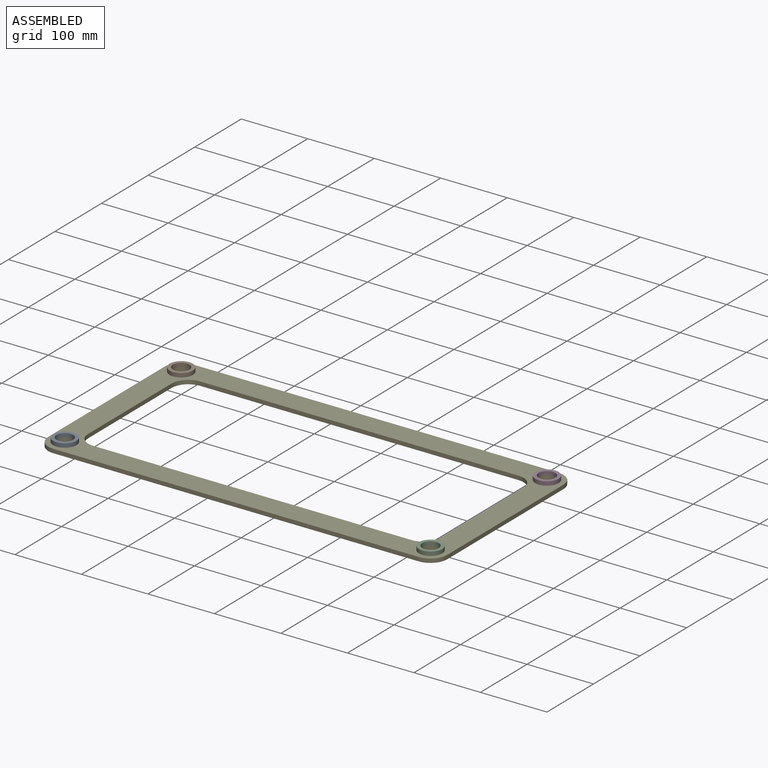
[diagram: assembled view]
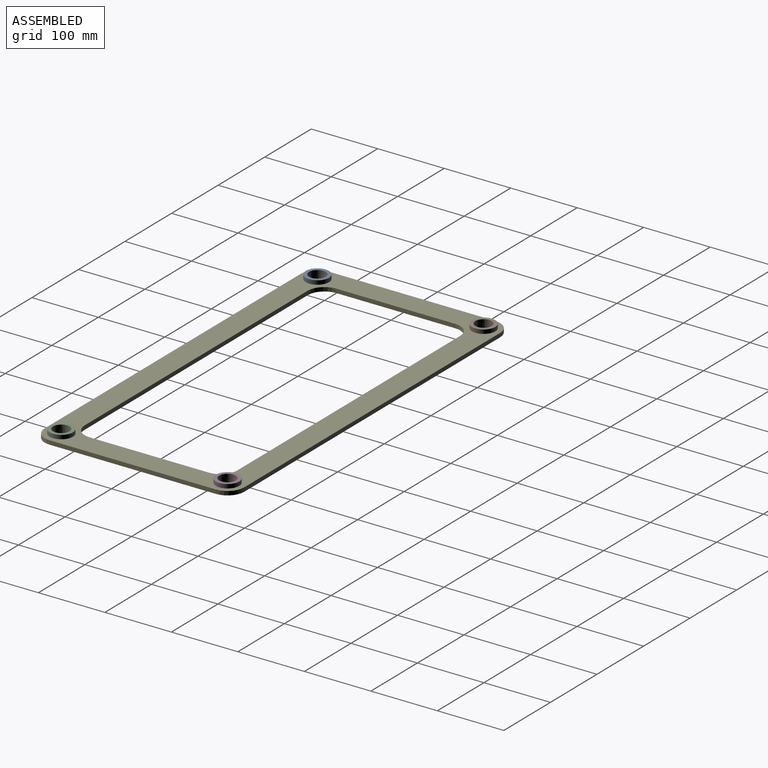
[diagram: assembled view, second angle]
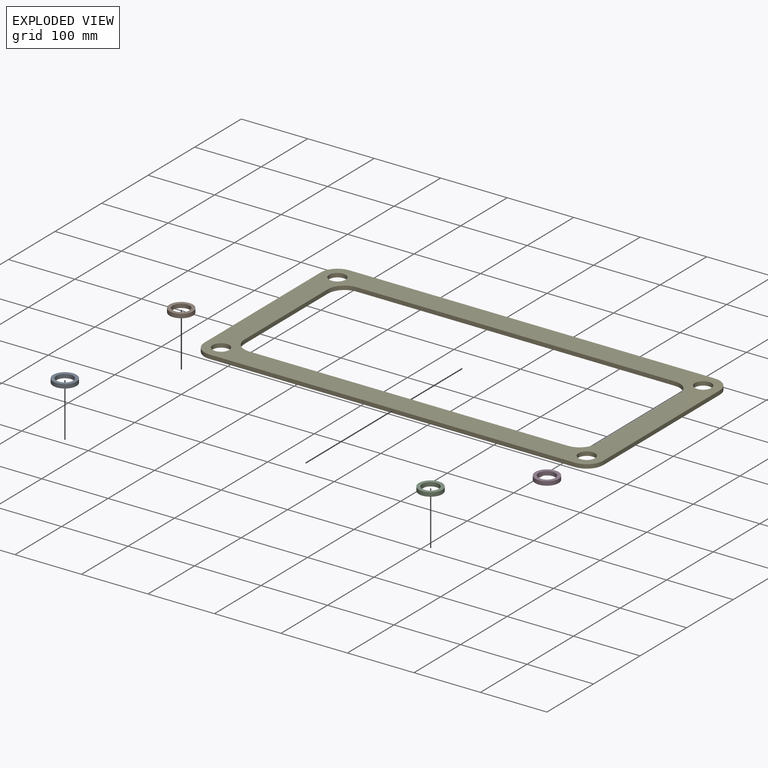
[diagram: exploded view]
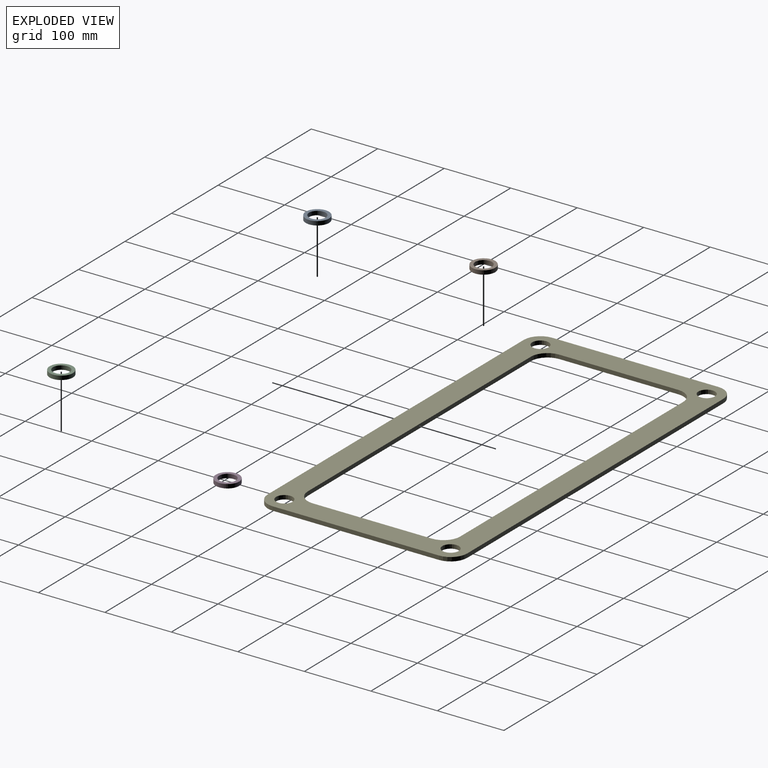
[diagram: exploded view, second angle]
ASSEMBLY  parts=5 mates=4
PART A: 4 faces, bbox 35x35x6 mm
  f0: cylinder r=12.5mm len=25mm, axis (0,0,-1), area 471.2mm2, adj f2,f3
  f1: cylinder r=17.5mm len=35mm, axis (0,0,-1), area 659.7mm2, adj f2,f3
  f2: plane 35x35mm, normal (0,0,1), area 471.2mm2, adj f0,f1
  f3: plane 35x35mm, normal (0,0,-1), area 471.2mm2, adj f0,f1
PART B: same geometry as A
PART C: same geometry as A
PART D: same geometry as A
PART E: 22 faces, bbox 600x300x6 mm
  f0: cylinder r=25mm len=25mm, axis (0,0,-1), area 235.6mm2, adj f1,f15,f16,f17
  f1: plane 550x6mm, normal (0,1,0), area 3300mm2, adj f0,f2,f16,f17
  f2: cylinder r=25mm len=25mm, axis (0,0,-1), area 235.6mm2, adj f1,f3,f16,f17
  f3: plane 250x6mm, normal (-1,0,0), area 1500mm2, adj f2,f4,f16,f17
  f4: cylinder r=25mm len=25mm, axis (0,0,-1), area 235.6mm2, adj f3,f5,f16,f17
  f5: plane 550x6mm, normal (0,-1,0), area 3300mm2, adj f4,f6,f16,f17
  f6: cylinder r=25mm len=25mm, axis (0,0,-1), area 235.6mm2, adj f5,f15,f16,f17
  f7: plane 479.29x6mm, normal (0,-1,0), area 2875.7mm2, adj f8,f14,f16,f17
  f8: cylinder r=25mm len=25mm, axis (0,0,-1), area 235.6mm2, adj f7,f9,f16,f17
  f9: plane 179.29x6mm, normal (-1,0,0), area 1075.7mm2, adj f8,f10,f16,f17
  f10: cylinder r=25mm len=25mm, axis (0,0,-1), area 235.6mm2, adj f9,f11,f16,f17
  f11: plane 479.29x6mm, normal (0,1,0), area 2875.7mm2, adj f10,f12,f16,f17
  f12: cylinder r=25mm len=25mm, axis (0,0,-1), area 235.6mm2, adj f11,f13,f16,f17
  f13: plane 179.29x6mm, normal (1,0,0), area 1075.7mm2, adj f12,f14,f16,f17
  f14: cylinder r=25mm len=25mm, axis (0,0,-1), area 235.6mm2, adj f7,f13,f16,f17
  f15: plane 250x6mm, normal (1,0,0), area 1500mm2, adj f0,f6,f16,f17
  f16: plane 600x300mm, normal (0,0,1), area 56676.1mm2, adj f0,f1,f2,f3,f4,f5,f6,f7
  f17: plane 600x300mm, normal (0,0,-1), area 56676.1mm2, adj f0,f1,f2,f3,f4,f5,f6,f7
  f18: cylinder r=12.5mm len=25mm, axis (0,0,-1), area 471.2mm2, adj f16,f17
  f19: cylinder r=12.5mm len=25mm, axis (0,0,-1), area 471.2mm2, adj f16,f17
  f20: cylinder r=12.5mm len=25mm, axis (0,0,-1), area 471.2mm2, adj f16,f17
  f21: cylinder r=12.5mm len=25mm, axis (0,0,-1), area 471.2mm2, adj f16,f17
PLACE A t=(-418.55,-423.58,105.1)mm
PLACE B t=(-418.55,-173.58,105.1)mm
PLACE C t=(131.45,-423.58,105.1)mm
PLACE D t=(131.45,-173.58,105.1)mm
PLACE E t=(-143.55,-298.58,99.1)mm fixed
MATE fastened E.f2 <-> B.f0  axis (0,0,1) through (-418.55,-173.58,105.1)mm
MATE fastened C.f0 <-> E.f6  axis (0,0,-1) through (131.45,-423.58,105.1)mm
MATE fastened A.f0 <-> E.f4  axis (0,0,-1) through (-418.55,-423.58,105.1)mm
MATE fastened D.f0 <-> E.f0  axis (0,0,-1) through (131.45,-173.58,105.1)mm
